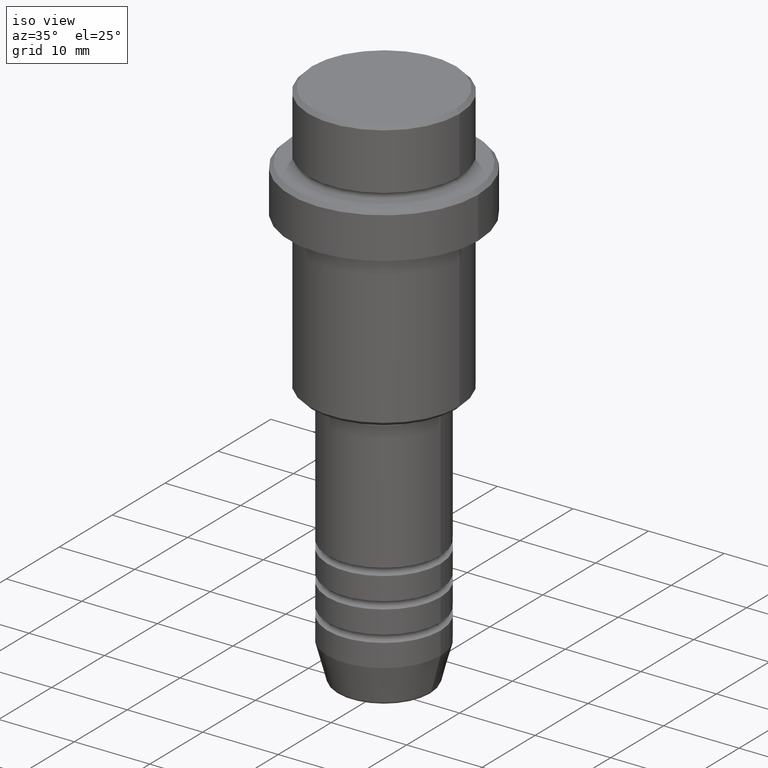
[diagram: clean part render]
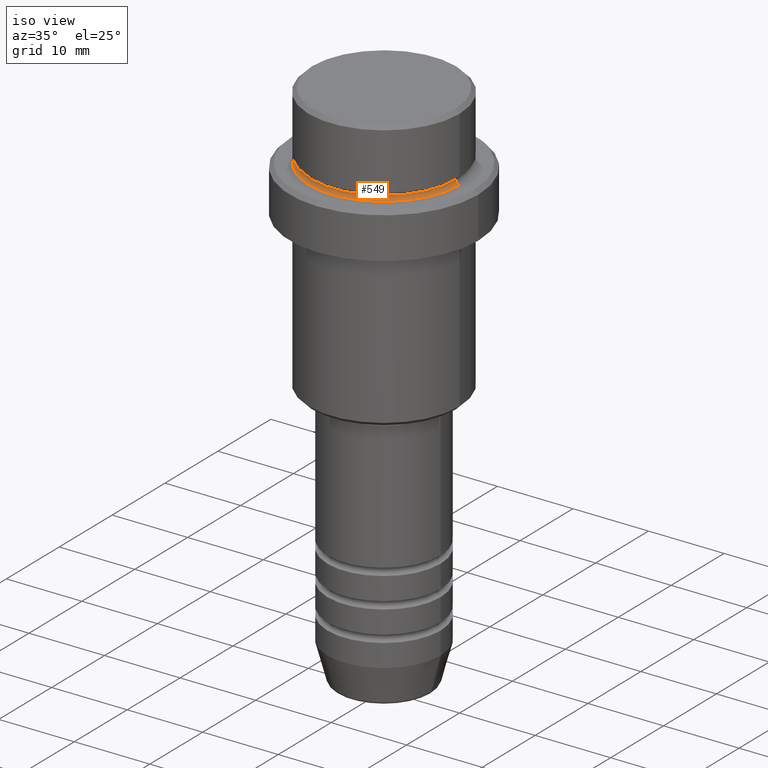
[diagram: same view with one face highlighted and labeled with its STEP entity id]
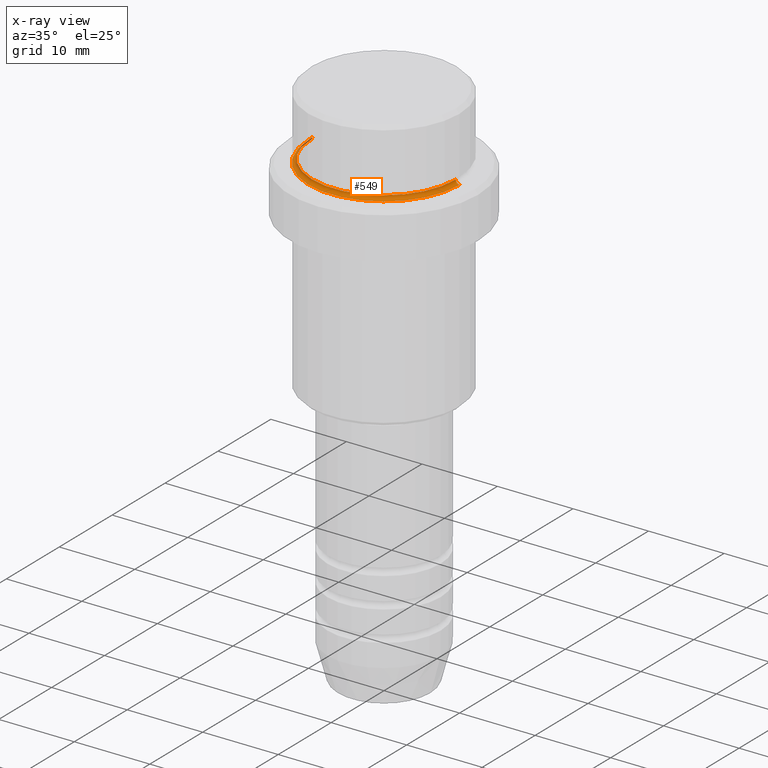
[diagram: x-ray of the same camera — body ghosted, the highlighted face saturated]
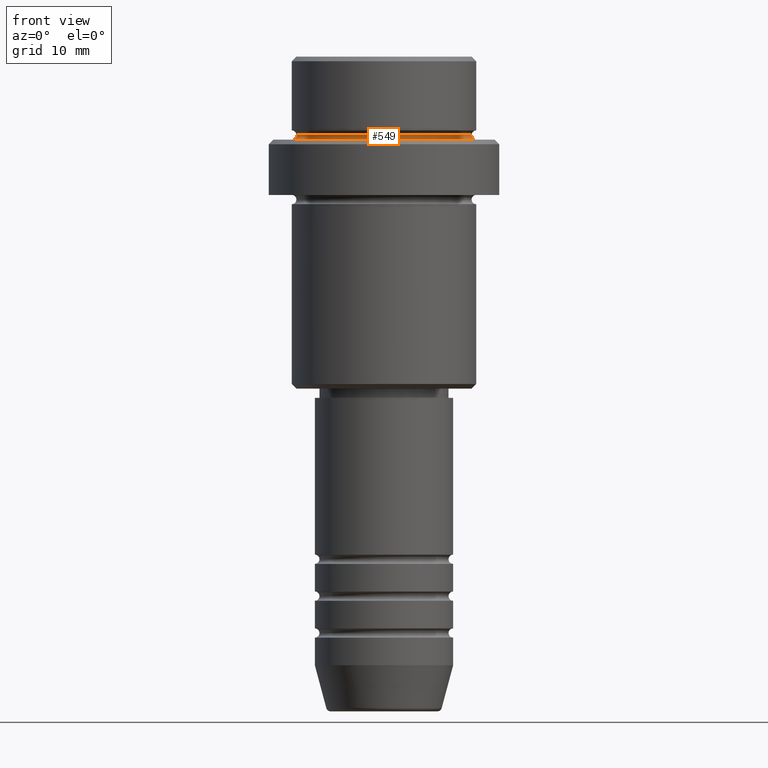
[diagram: same view with one face highlighted and labeled with its STEP entity id]
A machine part, iso view. The second image highlights one B-rep face of the part: STEP entity #549.
The next image is the same camera in x-ray: the body ghosted, the highlighted face saturated — about 2% of this face is hidden behind the body in this view.
A second angle (front view) of the same face is appended — the face is thin or edge-on in the first view.
In plain terms, the highlighted toroidal blend (fillet) surface has major radius 10 mm and minor (blend) radius 0.5 mm.
Its self-contained STEP definition (entity closure, byte-faithful):
#11 = AXIS2_PLACEMENT_3D ( 'NONE', #249, #1347, #1236 ) ;
#42 = CARTESIAN_POINT ( 'NONE',  ( 9.999999999999994671, 0.000000000000000000, -8.500000000000000000 ) ) ;
#57 = AXIS2_PLACEMENT_3D ( 'NONE', #617, #939, #1052 ) ;
#93 = CARTESIAN_POINT ( 'NONE',  ( 9.499999999999994671, 0.000000000000000000, -8.500000000000000000 ) ) ;
#116 = AXIS2_PLACEMENT_3D ( 'NONE', #1216, #922, #1118 ) ;
#133 = CARTESIAN_POINT ( 'NONE',  ( -9.499999999999994671, 1.194030629168668681E-15, -8.500000000000000000 ) ) ;
#249 = CARTESIAN_POINT ( 'NONE',  ( -9.999999999999994671, 1.224646799147352665E-15, -8.500000000000000000 ) ) ;
#274 = DIRECTION ( 'NONE',  ( 0.000000000000000000, -1.000000000000000000, 0.000000000000000000 ) ) ;
#299 = DIRECTION ( 'NONE',  ( 1.000000000000000000, 0.000000000000000000, 0.000000000000000000 ) ) ;
#309 = EDGE_LOOP ( 'NONE', ( #907, #924, #1369, #1142 ) ) ;
#324 = CARTESIAN_POINT ( 'NONE',  ( 9.999999999999994671, 0.000000000000000000, -9.000000000000001776 ) ) ;
#344 = EDGE_CURVE ( 'NONE', #686, #371, #1199, .T. ) ;
#371 = VERTEX_POINT ( 'NONE', #799 ) ;
#407 = CIRCLE ( 'NONE', #11, 0.5000000000000004441 ) ;
#549 = ADVANCED_FACE ( 'NONE', ( #1164 ), #1335, .F. ) ;
#617 = CARTESIAN_POINT ( 'NONE',  ( 0.000000000000000000, 0.000000000000000000, -8.500000000000000000 ) ) ;
#686 = VERTEX_POINT ( 'NONE', #324 ) ;
#725 = CIRCLE ( 'NONE', #1220, 9.499999999999994671 ) ;
#752 = VERTEX_POINT ( 'NONE', #93 ) ;
#799 = CARTESIAN_POINT ( 'NONE',  ( -9.999999999999994671, 1.224646799147352665E-15, -9.000000000000001776 ) ) ;
#869 = EDGE_CURVE ( 'NONE', #752, #686, #1407, .T. ) ;
#907 = ORIENTED_EDGE ( 'NONE', *, *, #1146, .F. ) ;
#919 = DIRECTION ( 'NONE',  ( 0.000000000000000000, 0.000000000000000000, -1.000000000000000000 ) ) ;
#922 = DIRECTION ( 'NONE',  ( 0.000000000000000000, 0.000000000000000000, -1.000000000000000000 ) ) ;
#924 = ORIENTED_EDGE ( 'NONE', *, *, #1097, .T. ) ;
#939 = DIRECTION ( 'NONE',  ( -0.000000000000000000, -0.000000000000000000, 1.000000000000000000 ) ) ;
#1004 = CARTESIAN_POINT ( 'NONE',  ( 0.000000000000000000, 0.000000000000000000, -8.500000000000000000 ) ) ;
#1018 = VERTEX_POINT ( 'NONE', #133 ) ;
#1052 = DIRECTION ( 'NONE',  ( 1.000000000000000000, 0.000000000000000000, 0.000000000000000000 ) ) ;
#1097 = EDGE_CURVE ( 'NONE', #1018, #371, #407, .T. ) ;
#1118 = DIRECTION ( 'NONE',  ( 1.000000000000000000, 0.000000000000000000, 0.000000000000000000 ) ) ;
#1131 = AXIS2_PLACEMENT_3D ( 'NONE', #42, #274, #919 ) ;
#1142 = ORIENTED_EDGE ( 'NONE', *, *, #869, .F. ) ;
#1146 = EDGE_CURVE ( 'NONE', #1018, #752, #725, .T. ) ;
#1164 = FACE_OUTER_BOUND ( 'NONE', #309, .T. ) ;
#1199 = CIRCLE ( 'NONE', #116, 9.999999999999994671 ) ;
#1216 = CARTESIAN_POINT ( 'NONE',  ( 0.000000000000000000, 0.000000000000000000, -9.000000000000001776 ) ) ;
#1220 = AXIS2_PLACEMENT_3D ( 'NONE', #1004, #1276, #299 ) ;
#1236 = DIRECTION ( 'NONE',  ( -1.000000000000000000, 1.224646799147353454E-16, 0.000000000000000000 ) ) ;
#1276 = DIRECTION ( 'NONE',  ( -0.000000000000000000, -0.000000000000000000, 1.000000000000000000 ) ) ;
#1335 = TOROIDAL_SURFACE ( 'NONE', #57, 9.999999999999994671, 0.5000000000000000000 ) ;
#1347 = DIRECTION ( 'NONE',  ( 1.224646799147353207E-16, 1.000000000000000000, 0.000000000000000000 ) ) ;
#1369 = ORIENTED_EDGE ( 'NONE', *, *, #344, .F. ) ;
#1407 = CIRCLE ( 'NONE', #1131, 0.5000000000000004441 ) ;